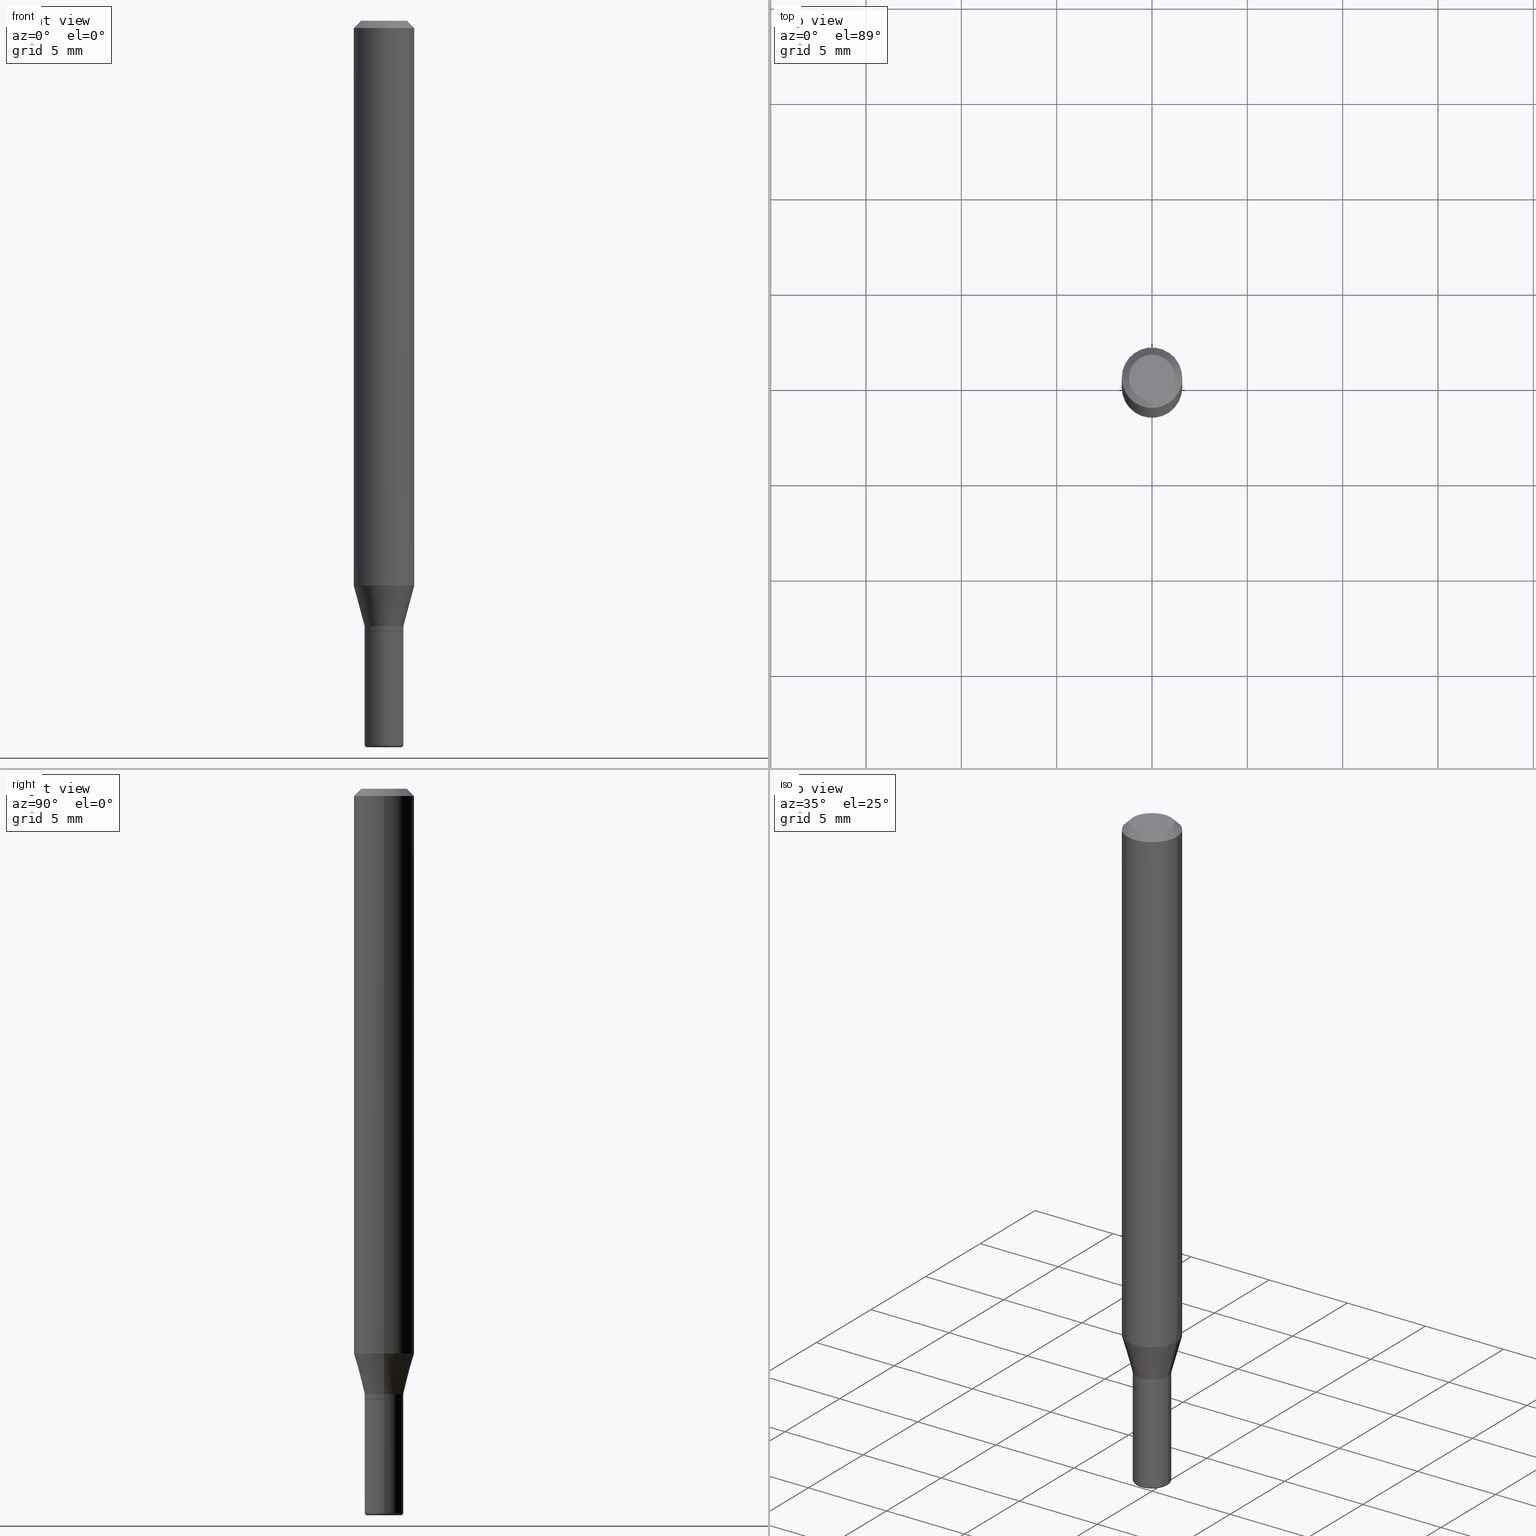
[diagram: canonical four-view strip — front | top / right | iso, engineering-drawing reading convention]
A machine part, canonical four-view strip (front | top / right | iso — engineering-drawing reading convention). The complete STEP part file that produces these views, byte-faithful:
ISO-10303-21;
HEADER;
FILE_DESCRIPTION (( 'STEP AP203' ),
    '1' );
FILE_NAME ('08701.STEP',
    '2024-02-29T20:27:56',
    ( '' ),
    ( '' ),
    'SwSTEP 2.0',
    'SolidWorks 2023',
    '' );
FILE_SCHEMA (( 'CONFIG_CONTROL_DESIGN' ));
ENDSEC;

DATA;
#1 = ADVANCED_FACE ( 'NONE', ( #173 ), #290, .T. ) ;
#2 = EDGE_LOOP ( 'NONE', ( #231, #312 ) ) ;
#3 = CARTESIAN_POINT ( 'NONE',  ( 3.080067961390179490E-29, -4.397520746272941828E-15, -1.259500000000000064 ) ) ;
#4 = AXIS2_PLACEMENT_3D ( 'NONE', #491, #408, #19 ) ;
#5 = APPROVAL_PERSON_ORGANIZATION ( #473, #186, #238 ) ;
#6 = EDGE_LOOP ( 'NONE', ( #75, #157, #207, #151 ) ) ;
#7 = CARTESIAN_POINT ( 'NONE',  ( -0.04000000000000000083, -4.525298449952393698E-15, -1.260000000000000231 ) ) ;
#8 = MANIFOLD_SOLID_BREP ( 'Body-Move/Copy2[1]', #131 ) ;
#9 = PERSON ( 'UNSPECIFIED', 'UNSPECIFIED', 'UNSPECIFIED', ('UNSPECIFIED'), ('UNSPECIFIED'), ('UNSPECIFIED') ) ;
#10 = DIRECTION ( 'NONE',  ( -6.982962677686266711E-15, -1.000000000000000000, 3.491481338843145583E-15 ) ) ;
#11 = PLANE ( 'NONE',  #4 ) ;
#12 = DIRECTION ( 'NONE',  ( -2.445468806185136597E-29, 3.491481338843145583E-15, 1.000000000000000000 ) ) ;
#13 = CIRCLE ( 'NONE', #91, 0.06250000000000000000 ) ;
#14 = CARTESIAN_POINT ( 'NONE',  ( 3.081290695793272291E-29, -4.399266486942364120E-15, -1.260000000000000231 ) ) ;
#15 = LOCAL_TIME ( 15, 27, 56.00000000000000000, #197 ) ;
#16 = FACE_OUTER_BOUND ( 'NONE', #2, .T. ) ;
#17 = CARTESIAN_POINT ( 'NONE',  ( -0.06250000000000000000, -3.627078784323440528E-15, -1.166028856829699700 ) ) ;
#18 = CC_DESIGN_PERSON_AND_ORGANIZATION_ASSIGNMENT ( #277, #426, ( #36 ) ) ;
#19 = DIRECTION ( 'NONE',  ( -1.000000000000000000, 6.982962677686265922E-15, -4.876176775795935793E-29 ) ) ;
#20 = DIRECTION ( 'NONE',  ( 0.7071067811864267805, -2.468850131080992517E-15, 0.7071067811866682540 ) ) ;
#21 = DIRECTION ( 'NONE',  ( -2.445468806185136597E-29, 3.491481338843145583E-15, 1.000000000000000000 ) ) ;
#22 = AXIS2_PLACEMENT_3D ( 'NONE', #3, #365, #203 ) ;
#23 = AXIS2_PLACEMENT_3D ( 'NONE', #292, #412, #179 ) ;
#24 = ORIENTED_EDGE ( 'NONE', *, *, #178, .T. ) ;
#25 = LENGTH_MEASURE_WITH_UNIT ( LENGTH_MEASURE( 0.02539999999999999897 ), #271 );
#26 = CARTESIAN_POINT ( 'NONE',  ( 3.081290695793272291E-29, -4.399266486942364120E-15, -1.260000000000000231 ) ) ;
#27 = EDGE_CURVE ( 'NONE', #198, #478, #166, .T. ) ;
#28 = APPROVAL_ROLE ( '' ) ;
#29 = EDGE_CURVE ( 'NONE', #125, #159, #421, .T. ) ;
#30 = CARTESIAN_POINT ( 'NONE',  ( 0.04750000000000000749, -4.035134999187568762E-16, 2.731847993664288856E-16 ) ) ;
#31 = ORIENTED_EDGE ( 'NONE', *, *, #165, .T. ) ;
#32 = EDGE_LOOP ( 'NONE', ( #24, #337, #246, #356 ) ) ;
#33 = APPROVAL_ROLE ( '' ) ;
#34 = DIRECTION ( 'NONE',  ( -2.445468806185136597E-29, 3.491481338843145583E-15, 1.000000000000000000 ) ) ;
#35 = AXIS2_PLACEMENT_3D ( 'NONE', #420, #68, #381 ) ;
#36 = SECURITY_CLASSIFICATION ( '', '', #115 ) ;
#37 = APPROVAL ( #236, 'UNSPECIFIED' ) ;
#38 = VERTEX_POINT ( 'NONE', #83 ) ;
#39 = APPROVAL_STATUS ( 'not_yet_approved' ) ;
#40 = DIRECTION ( 'NONE',  ( 0.2588190451025207395, 1.565188264969626109E-15, 0.9659258262890682012 ) ) ;
#41 = CIRCLE ( 'NONE', #389, 0.03999999999999995226 ) ;
#42 = AXIS2_PLACEMENT_3D ( 'NONE', #427, #237, #194 ) ;
#43 = AXIS2_PLACEMENT_3D ( 'NONE', #144, #300, #456 ) ;
#44 = CARTESIAN_POINT ( 'NONE',  ( 0.000000000000000000, 0.000000000000000000, 0.000000000000000000 ) ) ;
#45 = CARTESIAN_POINT ( 'NONE',  ( -0.06250000000000000000, 3.840629472727455270E-16, -0.01499999999999970281 ) ) ;
#46 = ORIENTED_EDGE ( 'NONE', *, *, #165, .F. ) ;
#47 = CARTESIAN_POINT ( 'NONE',  ( 0.04000000000000000083, -4.678584994049814947E-15, -1.260000000000000231 ) ) ;
#48 = TOROIDAL_SURFACE ( 'NONE', #204, 0.03500000000000000333, 0.004999999999999899490 ) ;
#49 = CC_DESIGN_SECURITY_CLASSIFICATION ( #36, ( #124 ) ) ;
#50 = DIRECTION ( 'NONE',  ( -2.445468806185136597E-29, 3.491481338843145583E-15, 1.000000000000000000 ) ) ;
#51 = EDGE_CURVE ( 'NONE', #503, #190, #279, .T. ) ;
#52 = DIRECTION ( 'NONE',  ( 1.000000000000000000, -6.982962677686266711E-15, 4.852736867747365086E-29 ) ) ;
#53 = ADVANCED_FACE ( 'NONE', ( #362 ), #48, .T. ) ;
#54 = DIRECTION ( 'NONE',  ( -2.445468806185136597E-29, 3.491481338843145583E-15, 1.000000000000000000 ) ) ;
#55 = DIRECTION ( 'NONE',  ( -2.438088387897960049E-29, 3.491481338843145188E-15, 1.000000000000000000 ) ) ;
#56 = AXIS2_PLACEMENT_3D ( 'NONE', #400, #446, #443 ) ;
#57 = VECTOR ( 'NONE', #192, 39.37007874015748143 ) ;
#58 = DIRECTION ( 'NONE',  ( 1.000000000000000000, -6.982962677686260400E-15, 0.000000000000000000 ) ) ;
#59 = MECHANICAL_CONTEXT ( 'NONE', #149, 'mechanical' ) ;
#60 = EDGE_CURVE ( 'NONE', #190, #501, #123, .T. ) ;
#61 = CARTESIAN_POINT ( 'NONE',  ( 0.03949999999999994488, -4.675093512710971151E-15, -1.260000000000000231 ) ) ;
#62 = ADVANCED_FACE ( 'NONE', ( #321 ), #195, .T. ) ;
#63 = ORIENTED_EDGE ( 'NONE', *, *, #119, .F. ) ;
#64 = FACE_OUTER_BOUND ( 'NONE', #167, .T. ) ;
#65 = DIRECTION ( 'NONE',  ( 1.000000000000000000, -6.982962677686267499E-15, 4.876176775795936353E-29 ) ) ;
#66 = ORIENTED_EDGE ( 'NONE', *, *, #163, .T. ) ;
#67 = DIRECTION ( 'NONE',  ( -1.000000000000000000, 6.982962677686266711E-15, 0.000000000000000000 ) ) ;
#68 = DIRECTION ( 'NONE',  ( -2.445468806185136597E-29, 3.491481338843145583E-15, 1.000000000000000000 ) ) ;
#69 = AXIS2_PLACEMENT_3D ( 'NONE', #294, #304, #135 ) ;
#70 = ORIENTED_EDGE ( 'NONE', *, *, #265, .F. ) ;
#71 = DATE_TIME_ROLE ( 'classification_date' ) ;
#72 = CARTESIAN_POINT ( 'NONE',  ( -0.03999999999999995226, 2.842170943040397351E-16, -1.967574036101960057E-30 ) ) ;
#73 = PRODUCT_RELATED_PRODUCT_CATEGORY ( 'detail', '', ( #363 ) ) ;
#74 = EDGE_LOOP ( 'NONE', ( #227, #287, #318, #512 ) ) ;
#75 = ORIENTED_EDGE ( 'NONE', *, *, #494, .T. ) ;
#76 = CALENDAR_DATE ( 2024, 29, 2 ) ;
#77 = DIRECTION ( 'NONE',  ( 1.000000000000000000, -6.982962677686260400E-15, 0.000000000000000000 ) ) ;
#78 = ORIENTED_EDGE ( 'NONE', *, *, #116, .T. ) ;
#79 = AXIS2_PLACEMENT_3D ( 'NONE', #26, #189, #502 ) ;
#80 = EDGE_LOOP ( 'NONE', ( #325, #385, #441, #120 ) ) ;
#81 = PERSON_AND_ORGANIZATION_ROLE ( 'creator' ) ;
#82 = ORIENTED_EDGE ( 'NONE', *, *, #461, .T. ) ;
#83 = CARTESIAN_POINT ( 'NONE',  ( 0.06250000000000000000, -4.507603161528894025E-15, -1.166028856829699700 ) ) ;
#84 = VERTEX_POINT ( 'NONE', #481 ) ;
#85 = DIRECTION ( 'NONE',  ( -2.445468806185136597E-29, 3.491481338843145583E-15, 1.000000000000000000 ) ) ;
#86 = ORIENTED_EDGE ( 'NONE', *, *, #136, .F. ) ;
#87 = CARTESIAN_POINT ( 'NONE',  ( 3.081290695793272291E-29, -4.399266486942364120E-15, -1.260000000000000231 ) ) ;
#88 = ORIENTED_EDGE ( 'NONE', *, *, #119, .T. ) ;
#89 = DIRECTION ( 'NONE',  ( -2.445468806185136877E-29, 3.491481338843145188E-15, 1.000000000000000000 ) ) ;
#90 = AXIS2_PLACEMENT_3D ( 'NONE', #374, #368, #52 ) ;
#91 = AXIS2_PLACEMENT_3D ( 'NONE', #181, #226, #331 ) ;
#92 = FACE_OUTER_BOUND ( 'NONE', #230, .T. ) ;
#93 = CARTESIAN_POINT ( 'NONE',  ( 0.000000000000000000, 0.000000000000000000, 0.000000000000000000 ) ) ;
#94 =( NAMED_UNIT ( * ) SI_UNIT ( $, .STERADIAN. ) SOLID_ANGLE_UNIT ( ) );
#95 = DIRECTION ( 'NONE',  ( 1.000000000000000000, -6.982962677686266711E-15, 0.000000000000000000 ) ) ;
#96 = DIRECTION ( 'NONE',  ( 0.000000000000000000, 0.000000000000000000, 1.000000000000000000 ) ) ;
#97 = ADVANCED_FACE ( 'NONE', ( #122 ), #284, .T. ) ;
#98 = AXIS2_PLACEMENT_3D ( 'NONE', #168, #326, #482 ) ;
#99 = UNCERTAINTY_MEASURE_WITH_UNIT (LENGTH_MEASURE( 1.000000000000000082E-05 ), #221, 'distance_accuracy_value', 'NONE');
#100 = CIRCLE ( 'NONE', #263, 0.06250000000000000000 ) ;
#101 = DIRECTION ( 'NONE',  ( 1.000000000000000000, -6.982962677686265922E-15, 4.876176775795935793E-29 ) ) ;
#102 = ORIENTED_EDGE ( 'NONE', *, *, #178, .F. ) ;
#103 = DIRECTION ( 'NONE',  ( 1.000000000000000000, -6.982962677686266711E-15, 4.876176775795935793E-29 ) ) ;
#104 = DIRECTION ( 'NONE',  ( 1.000000000000000000, -6.982962677686268288E-15, 0.000000000000000000 ) ) ;
#105 = ADVANCED_FACE ( 'NONE', ( #479 ), #403, .T. ) ;
#106 = CARTESIAN_POINT ( 'NONE',  ( 3.655975865246779683E-29, -5.219764601570503930E-15, -1.495000000000000329 ) ) ;
#107 = ORIENTED_EDGE ( 'NONE', *, *, #409, .F. ) ;
#108 = ORIENTED_EDGE ( 'NONE', *, *, #129, .F. ) ;
#109 = CARTESIAN_POINT ( 'NONE',  ( 3.668203209277632395E-31, -5.237222008264614861E-17, -0.01499999999999970281 ) ) ;
#110 = CARTESIAN_POINT ( 'NONE',  ( 0.000000000000000000, 0.000000000000000000, 0.000000000000000000 ) ) ;
#111 = VECTOR ( 'NONE', #339, 39.37007874015748143 ) ;
#112 = AXIS2_PLACEMENT_3D ( 'NONE', #145, #55, #369 ) ;
#113 = DIRECTION ( 'NONE',  ( 2.445468806185136597E-29, -3.491481338843145583E-15, -1.000000000000000000 ) ) ;
#114 = ORIENTED_EDGE ( 'NONE', *, *, #430, .F. ) ;
#115 = SECURITY_CLASSIFICATION_LEVEL ( 'unclassified' ) ;
#116 = EDGE_CURVE ( 'NONE', #297, #288, #395, .T. ) ;
#117 = APPROVAL_PERSON_ORGANIZATION ( #299, #37, #28 ) ;
#118 = COORDINATED_UNIVERSAL_TIME_OFFSET ( 5, 0, .BEHIND. ) ;
#119 = EDGE_CURVE ( 'NONE', #478, #508, #404, .T. ) ;
#120 = ORIENTED_EDGE ( 'NONE', *, *, #116, .F. ) ;
#121 = DIRECTION ( 'NONE',  ( -0.2588190451025207395, 5.211531920934546309E-15, 0.9659258262890682012 ) ) ;
#122 = FACE_OUTER_BOUND ( 'NONE', #431, .T. ) ;
#123 = CIRCLE ( 'NONE', #340, 0.03999999999999989675 ) ;
#124 = PRODUCT_DEFINITION_FORMATION_WITH_SPECIFIED_SOURCE ( 'ANY', '', #363, .NOT_KNOWN. ) ;
#125 = VERTEX_POINT ( 'NONE', #47 ) ;
#126 = DIRECTION ( 'NONE',  ( 1.000000000000000000, -6.982962677686266711E-15, 4.876176775795935793E-29 ) ) ;
#127 = CARTESIAN_POINT ( 'NONE',  ( 0.03999999999999993838, -2.793185071074502839E-16, 1.950470710318371585E-30 ) ) ;
#128 = CC_DESIGN_PERSON_AND_ORGANIZATION_ASSIGNMENT ( #471, #319, ( #124 ) ) ;
#129 = EDGE_CURVE ( 'NONE', #504, #38, #364, .T. ) ;
#130 = CARTESIAN_POINT ( 'NONE',  ( -0.03999999999999993838, 2.842170943040396365E-16, -1.967574036101959356E-30 ) ) ;
#131 = CLOSED_SHELL ( 'NONE', ( #105, #360, #260, #97, #53, #305 ) ) ;
#132 = CIRCLE ( 'NONE', #273, 0.03999999999999993144 ) ;
#133 = LOCAL_TIME ( 15, 27, 56.00000000000000000, #118 ) ;
#134 = CARTESIAN_POINT ( 'NONE',  ( -0.06250000000000000000, -1.617680897278011707E-15, -0.01499999999999970281 ) ) ;
#135 = DIRECTION ( 'NONE',  ( 1.000000000000000000, -6.982962677686266711E-15, 4.852736867747365086E-29 ) ) ;
#136 = EDGE_CURVE ( 'NONE', #198, #84, #514, .T. ) ;
#137 = DIRECTION ( 'NONE',  ( 1.000000000000000000, -6.982962677686256455E-15, 0.000000000000000000 ) ) ;
#138 = EDGE_CURVE ( 'NONE', #508, #38, #348, .T. ) ;
#139 = CARTESIAN_POINT ( 'NONE',  ( 0.000000000000000000, 0.000000000000000000, 0.000000000000000000 ) ) ;
#140 = FACE_OUTER_BOUND ( 'NONE', #345, .T. ) ;
#141 = ORIENTED_EDGE ( 'NONE', *, *, #138, .T. ) ;
#142 = APPLICATION_PROTOCOL_DEFINITION ( 'international standard', 'config_control_design', 1994, #428 ) ;
#143 = CLOSED_SHELL ( 'NONE', ( #352, #62, #442, #1, #213, #276, #506, #499, #513, #515, #373, #336 ) ) ;
#144 = CARTESIAN_POINT ( 'NONE',  ( 0.000000000000000000, 0.000000000000000000, 0.000000000000000000 ) ) ;
#145 = CARTESIAN_POINT ( 'NONE',  ( 3.081290695793272291E-29, -4.399266486942364120E-15, -1.260000000000000231 ) ) ;
#146 = CYLINDRICAL_SURFACE ( 'NONE', #43, 0.03999999999999993838 ) ;
#147 = ORIENTED_EDGE ( 'NONE', *, *, #211, .T. ) ;
#148 = CARTESIAN_POINT ( 'NONE',  ( 0.000000000000000000, 0.000000000000000000, 0.000000000000000000 ) ) ;
#149 = APPLICATION_CONTEXT ( 'configuration controlled 3d designs of mechanical parts and assemblies' ) ;
#150 = LINE ( 'NONE', #311, #57 ) ;
#151 = ORIENTED_EDGE ( 'NONE', *, *, #51, .F. ) ;
#152 = DIRECTION ( 'NONE',  ( -2.445468806185136597E-29, 3.491481338843145583E-15, 1.000000000000000000 ) ) ;
#153 = CIRCLE ( 'NONE', #35, 0.03500000000000000333 ) ;
#154 = EDGE_LOOP ( 'NONE', ( #224, #359 ) ) ;
#155 = DATE_AND_TIME ( #245, #349 ) ;
#156 = DIRECTION ( 'NONE',  ( -0.7071067811864267805, 7.493145998869918709E-15, 0.7071067811866682540 ) ) ;
#157 = ORIENTED_EDGE ( 'NONE', *, *, #322, .T. ) ;
#158 = PERSON_AND_ORGANIZATION_ROLE ( 'design_supplier' ) ;
#159 = VERTEX_POINT ( 'NONE', #7 ) ;
#160 = CIRCLE ( 'NONE', #250, 0.03999999999999989675 ) ;
#161 = APPROVAL_DATE_TIME ( #382, #457 ) ;
#162 = PRODUCT_DEFINITION ( 'UNKNOWN', '', #124, #451 ) ;
#163 = EDGE_CURVE ( 'NONE', #84, #504, #172, .T. ) ;
#164 = DIRECTION ( 'NONE',  ( 1.000000000000000000, -6.982962677686284854E-15, 0.000000000000000000 ) ) ;
#165 = EDGE_CURVE ( 'NONE', #38, #308, #216, .T. ) ;
#166 = LINE ( 'NONE', #130, #465 ) ;
#167 = EDGE_LOOP ( 'NONE', ( #270, #393 ) ) ;
#168 = CARTESIAN_POINT ( 'NONE',  ( 2.851487196488745443E-29, -4.071167994173502356E-15, -1.166028856829699700 ) ) ;
#169 = CC_DESIGN_PERSON_AND_ORGANIZATION_ASSIGNMENT ( #495, #380, ( #363 ) ) ;
#170 = AXIS2_PLACEMENT_3D ( 'NONE', #445, #10, #164 ) ;
#171 = CC_DESIGN_APPROVAL ( #457, ( #36 ) ) ;
#172 = LINE ( 'NONE', #127, #248 ) ;
#173 = FACE_OUTER_BOUND ( 'NONE', #458, .T. ) ;
#174 = ORIENTED_EDGE ( 'NONE', *, *, #411, .F. ) ;
#175 = DIRECTION ( 'NONE',  ( -2.445468806185136597E-29, 3.491481338843145583E-15, 1.000000000000000000 ) ) ;
#176 = VECTOR ( 'NONE', #156, 39.37007874015748143 ) ;
#177 = CARTESIAN_POINT ( 'NONE',  ( -0.03500000000000000333, -4.962039779007574825E-15, -1.499999999999999778 ) ) ;
#178 = EDGE_CURVE ( 'NONE', #84, #198, #41, .T. ) ;
#179 = DIRECTION ( 'NONE',  ( -1.000000000000000000, 7.105427357601074434E-15, 0.000000000000000000 ) ) ;
#180 = DIRECTION ( 'NONE',  ( -2.445468806185136597E-29, 3.491481338843145583E-15, 1.000000000000000000 ) ) ;
#181 = CARTESIAN_POINT ( 'NONE',  ( 3.668203209277632395E-31, -5.237222008264614861E-17, -0.01499999999999970281 ) ) ;
#182 = ORIENTED_EDGE ( 'NONE', *, *, #280, .T. ) ;
#183 = CARTESIAN_POINT ( 'NONE',  ( 3.668203209277704335E-29, -5.237222008264717388E-15, -1.499999999999999778 ) ) ;
#184 = VECTOR ( 'NONE', #121, 39.37007874015748854 ) ;
#185 = CARTESIAN_POINT ( 'NONE',  ( -0.03949999999999994488, -4.115952879143013491E-15, -1.260000000000000231 ) ) ;
#186 = APPROVAL ( #357, 'UNSPECIFIED' ) ;
#187 = ORIENTED_EDGE ( 'NONE', *, *, #449, .T. ) ;
#188 = CARTESIAN_POINT ( 'NONE',  ( 0.03500000000000000333, -5.481625701983737354E-15, -1.499999999999999778 ) ) ;
#189 = DIRECTION ( 'NONE',  ( -2.445468806185136597E-29, 3.491481338843145583E-15, 1.000000000000000000 ) ) ;
#190 = VERTEX_POINT ( 'NONE', #219 ) ;
#191 = CALENDAR_DATE ( 2024, 29, 2 ) ;
#192 = DIRECTION ( 'NONE',  ( 0.7071067811865479058, -7.319954787623257623E-15, -0.7071067811865471286 ) ) ;
#193 = DATE_TIME_ROLE ( 'creation_date' ) ;
#194 = DIRECTION ( 'NONE',  ( 1.000000000000000000, -6.982962677686259611E-15, 0.000000000000000000 ) ) ;
#195 = CONICAL_SURFACE ( 'NONE', #202, 0.03949999999999994488, 0.7853981633972775267 ) ;
#196 = AXIS2_PLACEMENT_3D ( 'NONE', #14, #175, #137 ) ;
#197 = COORDINATED_UNIVERSAL_TIME_OFFSET ( 5, 0, .BEHIND. ) ;
#198 = VERTEX_POINT ( 'NONE', #376 ) ;
#199 = COORDINATED_UNIVERSAL_TIME_OFFSET ( 5, 0, .BEHIND. ) ;
#200 = ORIENTED_EDGE ( 'NONE', *, *, #470, .F. ) ;
#201 = ORIENTED_EDGE ( 'NONE', *, *, #51, .T. ) ;
#202 = AXIS2_PLACEMENT_3D ( 'NONE', #518, #324, #282 ) ;
#203 = DIRECTION ( 'NONE',  ( 1.000000000000000000, -6.982962677686268288E-15, 0.000000000000000000 ) ) ;
#204 = AXIS2_PLACEMENT_3D ( 'NONE', #328, #50, #516 ) ;
#205 = CONICAL_SURFACE ( 'NONE', #405, 0.06250000000000000000, 0.7853981633974488341 ) ;
#206 = PRODUCT_DEFINITION_SHAPE ( 'NONE', 'NONE',  #162 ) ;
#207 = ORIENTED_EDGE ( 'NONE', *, *, #60, .F. ) ;
#208 = DIRECTION ( 'NONE',  ( -2.445468806185136877E-29, 3.491481338843145188E-15, 1.000000000000000000 ) ) ;
#209 = VERTEX_POINT ( 'NONE', #185 ) ;
#210 = CARTESIAN_POINT ( 'NONE',  ( -0.03999999999999993144, -4.080134579249892145E-15, -1.249999999999999778 ) ) ;
#211 = EDGE_CURVE ( 'NONE', #504, #478, #239, .T. ) ;
#212 = CARTESIAN_POINT ( 'NONE',  ( 0.03999999999999993144, -4.643670180661380931E-15, -1.249999999999999778 ) ) ;
#213 = ADVANCED_FACE ( 'NONE', ( #406 ), #262, .T. ) ;
#214 = LOCAL_TIME ( 15, 27, 56.00000000000000000, #199 ) ;
#215 = APPROVAL_PERSON_ORGANIZATION ( #388, #457, #33 ) ;
#216 = LINE ( 'NONE', #255, #475 ) ;
#217 = FACE_OUTER_BOUND ( 'NONE', #320, .T. ) ;
#218 = CARTESIAN_POINT ( 'NONE',  ( -0.03999999999999989675, -4.525298449952393698E-15, -1.495000000000000329 ) ) ;
#219 = CARTESIAN_POINT ( 'NONE',  ( 0.03999999999999989675, -5.499083108677954756E-15, -1.495000000000000329 ) ) ;
#220 =( GEOMETRIC_REPRESENTATION_CONTEXT ( 3 ) GLOBAL_UNCERTAINTY_ASSIGNED_CONTEXT ( ( #99 ) ) GLOBAL_UNIT_ASSIGNED_CONTEXT ( ( #221, #338, #94 ) ) REPRESENTATION_CONTEXT ( 'NONE', 'WORKASPACE' ) );
#221 =( CONVERSION_BASED_UNIT ( 'INCH', #25 ) LENGTH_UNIT ( ) NAMED_UNIT ( #476 ) );
#222 = DIRECTION ( 'NONE',  ( -2.445468806185136597E-29, 3.491481338843145583E-15, 1.000000000000000000 ) ) ;
#223 = PLANE ( 'NONE',  #358 ) ;
#224 = ORIENTED_EDGE ( 'NONE', *, *, #391, .F. ) ;
#225 = DIRECTION ( 'NONE',  ( 2.438088387897960049E-29, -3.491481338843145188E-15, -1.000000000000000000 ) ) ;
#226 = DIRECTION ( 'NONE',  ( -2.445468806185136597E-29, 3.491481338843145583E-15, 1.000000000000000000 ) ) ;
#227 = ORIENTED_EDGE ( 'NONE', *, *, #60, .T. ) ;
#228 = AXIS2_PLACEMENT_3D ( 'NONE', #109, #341, #67 ) ;
#229 = DIRECTION ( 'NONE',  ( 1.000000000000000000, -6.982962677686266711E-15, 4.876176775795935793E-29 ) ) ;
#230 = EDGE_LOOP ( 'NONE', ( #480, #307 ) ) ;
#231 = ORIENTED_EDGE ( 'NONE', *, *, #29, .T. ) ;
#232 = DATE_AND_TIME ( #394, #298 ) ;
#233 = CYLINDRICAL_SURFACE ( 'NONE', #413, 0.03999999999999995226 ) ;
#234 = ORIENTED_EDGE ( 'NONE', *, *, #269, .T. ) ;
#235 = VERTEX_POINT ( 'NONE', #177 ) ;
#236 = APPROVAL_STATUS ( 'not_yet_approved' ) ;
#237 = DIRECTION ( 'NONE',  ( -2.445468806185136597E-29, 3.491481338843145583E-15, 1.000000000000000000 ) ) ;
#238 = APPROVAL_ROLE ( '' ) ;
#239 = CIRCLE ( 'NONE', #396, 0.03999999999999993144 ) ;
#240 = CIRCLE ( 'NONE', #379, 0.03949999999999994488 ) ;
#241 = EDGE_LOOP ( 'NONE', ( #70, #141, #31, #347 ) ) ;
#242 = APPROVAL_DATE_TIME ( #354, #37 ) ;
#243 = EDGE_CURVE ( 'NONE', #308, #288, #332, .T. ) ;
#244 = ORIENTED_EDGE ( 'NONE', *, *, #322, .F. ) ;
#245 = CALENDAR_DATE ( 2024, 29, 2 ) ;
#246 = ORIENTED_EDGE ( 'NONE', *, *, #211, .F. ) ;
#247 = CARTESIAN_POINT ( 'NONE',  ( 3.655975865246779683E-29, -5.219764601570503930E-15, -1.495000000000000329 ) ) ;
#248 = VECTOR ( 'NONE', #89, 39.37007874015748143 ) ;
#249 = DIRECTION ( 'NONE',  ( 1.000000000000000000, -6.982962677686266711E-15, 4.876176775795935793E-29 ) ) ;
#250 = AXIS2_PLACEMENT_3D ( 'NONE', #106, #314, #306 ) ;
#251 = ORIENTED_EDGE ( 'NONE', *, *, #391, .T. ) ;
#252 = CARTESIAN_POINT ( 'NONE',  ( 0.000000000000000000, 0.000000000000000000, 0.000000000000000000 ) ) ;
#253 = EDGE_CURVE ( 'NONE', #297, #425, #317, .T. ) ;
#254 = VERTEX_POINT ( 'NONE', #61 ) ;
#255 = CARTESIAN_POINT ( 'NONE',  ( 0.06250000000000000000, -4.364351673553916694E-16, 3.047610484872459871E-30 ) ) ;
#256 = AXIS2_PLACEMENT_3D ( 'NONE', #295, #21, #95 ) ;
#257 = ORGANIZATION ( 'UNSPECIFIED', 'UNSPECIFIED', '' ) ;
#258 = DIRECTION ( 'NONE',  ( -2.445468806185136597E-29, 3.491481338843145583E-15, 1.000000000000000000 ) ) ;
#259 = CARTESIAN_POINT ( 'NONE',  ( 3.056836007731420185E-29, -4.364351673553931682E-15, -1.249999999999999778 ) ) ;
#260 = ADVANCED_FACE ( 'NONE', ( #16 ), #11, .F. ) ;
#261 = CARTESIAN_POINT ( 'NONE',  ( 3.582686580359765478E-29, -5.359686688179452536E-15, -1.499999999999999778 ) ) ;
#262 = CONICAL_SURFACE ( 'NONE', #454, 0.03999999999999993144, 0.2617993877991494633 ) ;
#263 = AXIS2_PLACEMENT_3D ( 'NONE', #507, #152, #344 ) ;
#264 = DIRECTION ( 'NONE',  ( 1.000000000000000000, 0.000000000000000000, 0.000000000000000000 ) ) ;
#265 = EDGE_CURVE ( 'NONE', #508, #288, #370, .T. ) ;
#266 = CARTESIAN_POINT ( 'NONE',  ( -0.04750000000000000749, 3.578768372314221353E-16, 2.731847993664239060E-16 ) ) ;
#267 = PLANE ( 'NONE',  #274 ) ;
#268 = FACE_OUTER_BOUND ( 'NONE', #32, .T. ) ;
#269 = EDGE_CURVE ( 'NONE', #209, #254, #296, .T. ) ;
#270 = ORIENTED_EDGE ( 'NONE', *, *, #253, .T. ) ;
#271 =( LENGTH_UNIT ( ) NAMED_UNIT ( * ) SI_UNIT ( $, .METRE. ) );
#272 = DIRECTION ( 'NONE',  ( -1.000000000000000000, 6.982962677686266711E-15, 0.000000000000000000 ) ) ;
#273 = AXIS2_PLACEMENT_3D ( 'NONE', #424, #383, #77 ) ;
#274 = AXIS2_PLACEMENT_3D ( 'NONE', #490, #225, #407 ) ;
#275 = DIRECTION ( 'NONE',  ( -2.445468806185136597E-29, 3.491481338843145583E-15, 1.000000000000000000 ) ) ;
#276 = ADVANCED_FACE ( 'NONE', ( #140 ), #371, .T. ) ;
#277 = PERSON_AND_ORGANIZATION ( #9, #257 ) ;
#278 = FACE_OUTER_BOUND ( 'NONE', #419, .T. ) ;
#279 = CIRCLE ( 'NONE', #170, 0.004999999999999895153 ) ;
#280 = EDGE_CURVE ( 'NONE', #288, #308, #13, .T. ) ;
#281 = CC_DESIGN_APPROVAL ( #37, ( #162 ) ) ;
#282 = DIRECTION ( 'NONE',  ( 1.000000000000000000, -6.982962677686256455E-15, 0.000000000000000000 ) ) ;
#283 = VECTOR ( 'NONE', #40, 39.37007874015748854 ) ;
#284 = CYLINDRICAL_SURFACE ( 'NONE', #509, 0.03999999999999995226 ) ;
#285 = CIRCLE ( 'NONE', #23, 0.004999999999999895153 ) ;
#286 = ORIENTED_EDGE ( 'NONE', *, *, #411, .T. ) ;
#287 = ORIENTED_EDGE ( 'NONE', *, *, #437, .T. ) ;
#288 = VERTEX_POINT ( 'NONE', #134 ) ;
#289 = DIRECTION ( 'NONE',  ( -2.445468806185136597E-29, 3.491481338843145583E-15, 1.000000000000000000 ) ) ;
#290 = CYLINDRICAL_SURFACE ( 'NONE', #439, 0.06250000000000000000 ) ;
#291 = CONICAL_SURFACE ( 'NONE', #79, 0.03949999999999994488, 0.7853981633972775267 ) ;
#292 = CARTESIAN_POINT ( 'NONE',  ( -0.03500000000000000333, -4.971074644054467855E-15, -1.495000000000000107 ) ) ;
#293 = CARTESIAN_POINT ( 'NONE',  ( 3.056836007731420185E-29, -4.364351673553931682E-15, -1.249999999999999778 ) ) ;
#294 = CARTESIAN_POINT ( 'NONE',  ( -6.680649051745406845E-45, 9.538196290434862081E-31, 2.731847993664263218E-16 ) ) ;
#295 = CARTESIAN_POINT ( 'NONE',  ( 3.668203209277632395E-31, -5.237222008264614861E-17, -0.01499999999999970281 ) ) ;
#296 = CIRCLE ( 'NONE', #196, 0.03949999999999994488 ) ;
#297 = VERTEX_POINT ( 'NONE', #266 ) ;
#298 = LOCAL_TIME ( 15, 27, 56.00000000000000000, #313 ) ;
#299 = PERSON_AND_ORGANIZATION ( #9, #257 ) ;
#300 = DIRECTION ( 'NONE',  ( -2.445468806185136597E-29, 3.491481338843145583E-15, 1.000000000000000000 ) ) ;
#301 = ORIENTED_EDGE ( 'NONE', *, *, #449, .F. ) ;
#302 = CARTESIAN_POINT ( 'NONE',  ( 0.03999999999999993144, -4.643670180661380931E-15, -1.249999999999999778 ) ) ;
#303 = FACE_OUTER_BOUND ( 'NONE', #74, .T. ) ;
#304 = DIRECTION ( 'NONE',  ( -2.445468806185136597E-29, 3.491481338843145583E-15, 1.000000000000000000 ) ) ;
#305 = ADVANCED_FACE ( 'NONE', ( #92 ), #223, .F. ) ;
#306 = DIRECTION ( 'NONE',  ( 1.000000000000000000, -6.982962677686277755E-15, 0.000000000000000000 ) ) ;
#307 = ORIENTED_EDGE ( 'NONE', *, *, #461, .F. ) ;
#308 = VERTEX_POINT ( 'NONE', #488 ) ;
#309 = PERSON_AND_ORGANIZATION ( #9, #257 ) ;
#310 = VECTOR ( 'NONE', #496, 39.37007874015748143 ) ;
#311 = CARTESIAN_POINT ( 'NONE',  ( 0.06250000000000000000, -4.811533449433669144E-16, -0.01499999999999970281 ) ) ;
#312 = ORIENTED_EDGE ( 'NONE', *, *, #444, .T. ) ;
#313 = COORDINATED_UNIVERSAL_TIME_OFFSET ( 5, 0, .BEHIND. ) ;
#314 = DIRECTION ( 'NONE',  ( -2.445468806185136597E-29, 3.491481338843145583E-15, 1.000000000000000000 ) ) ;
#315 = CC_DESIGN_DATE_AND_TIME_ASSIGNMENT ( #423, #71, ( #36 ) ) ;
#316 = ORIENTED_EDGE ( 'NONE', *, *, #437, .F. ) ;
#317 = CIRCLE ( 'NONE', #90, 0.04750000000000000749 ) ;
#318 = ORIENTED_EDGE ( 'NONE', *, *, #29, .F. ) ;
#319 = PERSON_AND_ORGANIZATION_ROLE ( 'creator' ) ;
#320 = EDGE_LOOP ( 'NONE', ( #330, #361, #66, #174 ) ) ;
#321 = FACE_OUTER_BOUND ( 'NONE', #493, .T. ) ;
#322 = EDGE_CURVE ( 'NONE', #235, #501, #285, .T. ) ;
#323 = EDGE_LOOP ( 'NONE', ( #244, #82, #201, #107 ) ) ;
#324 = DIRECTION ( 'NONE',  ( -2.445468806185136597E-29, 3.491481338843145583E-15, 1.000000000000000000 ) ) ;
#325 = ORIENTED_EDGE ( 'NONE', *, *, #483, .F. ) ;
#326 = DIRECTION ( 'NONE',  ( -2.445468806185136597E-29, 3.491481338843145583E-15, 1.000000000000000000 ) ) ;
#327 = VECTOR ( 'NONE', #20, 39.37007874015748143 ) ;
#328 = CARTESIAN_POINT ( 'NONE',  ( 3.655975865246779122E-29, -5.219764601570503141E-15, -1.495000000000000107 ) ) ;
#329 = CC_DESIGN_PERSON_AND_ORGANIZATION_ASSIGNMENT ( #309, #158, ( #124 ) ) ;
#330 = ORIENTED_EDGE ( 'NONE', *, *, #27, .F. ) ;
#331 = DIRECTION ( 'NONE',  ( 1.000000000000000000, -6.982962677686266711E-15, 0.000000000000000000 ) ) ;
#332 = CIRCLE ( 'NONE', #256, 0.06250000000000000000 ) ;
#333 = CARTESIAN_POINT ( 'NONE',  ( 3.080067961390179490E-29, -4.397520746272941828E-15, -1.259500000000000064 ) ) ;
#334 = CARTESIAN_POINT ( 'NONE',  ( 3.056836007731420185E-29, -4.364351673553931682E-15, -1.249999999999999778 ) ) ;
#335 = EDGE_CURVE ( 'NONE', #190, #125, #492, .T. ) ;
#336 = ADVANCED_FACE ( 'NONE', ( #217 ), #146, .T. ) ;
#337 = ORIENTED_EDGE ( 'NONE', *, *, #27, .T. ) ;
#338 =( NAMED_UNIT ( * ) PLANE_ANGLE_UNIT ( ) SI_UNIT ( $, .RADIAN. ) );
#339 = DIRECTION ( 'NONE',  ( -2.445468806185136877E-29, 3.491481338843145188E-15, 1.000000000000000000 ) ) ;
#340 = AXIS2_PLACEMENT_3D ( 'NONE', #247, #289, #485 ) ;
#341 = DIRECTION ( 'NONE',  ( 2.445468806185136597E-29, -3.491481338843145583E-15, -1.000000000000000000 ) ) ;
#342 = CARTESIAN_POINT ( 'NONE',  ( -0.06250000000000000000, 4.440892098500626162E-16, -3.074334431409316114E-30 ) ) ;
#343 = ORIENTED_EDGE ( 'NONE', *, *, #335, .T. ) ;
#344 = DIRECTION ( 'NONE',  ( 1.000000000000000000, -6.982962677686262766E-15, 0.000000000000000000 ) ) ;
#345 = EDGE_LOOP ( 'NONE', ( #63, #286, #355, #399 ) ) ;
#346 = DIRECTION ( 'NONE',  ( -2.445468806185136877E-29, 3.491481338843145188E-15, 1.000000000000000000 ) ) ;
#347 = ORIENTED_EDGE ( 'NONE', *, *, #280, .F. ) ;
#348 = CIRCLE ( 'NONE', #98, 0.06250000000000000000 ) ;
#349 = LOCAL_TIME ( 15, 27, 56.00000000000000000, #429 ) ;
#350 = LINE ( 'NONE', #511, #176 ) ;
#351 = MANIFOLD_SOLID_BREP ( 'Body-Move/Copy2[2]', #143 ) ;
#352 = ADVANCED_FACE ( 'NONE', ( #268 ), #448, .T. ) ;
#353 = CC_DESIGN_DATE_AND_TIME_ASSIGNMENT ( #155, #193, ( #162 ) ) ;
#354 = DATE_AND_TIME ( #386, #214 ) ;
#355 = ORIENTED_EDGE ( 'NONE', *, *, #129, .T. ) ;
#356 = ORIENTED_EDGE ( 'NONE', *, *, #163, .F. ) ;
#357 = APPROVAL_STATUS ( 'not_yet_approved' ) ;
#358 = AXIS2_PLACEMENT_3D ( 'NONE', #261, #500, #101 ) ;
#359 = ORIENTED_EDGE ( 'NONE', *, *, #269, .F. ) ;
#360 = ADVANCED_FACE ( 'NONE', ( #303 ), #233, .T. ) ;
#361 = ORIENTED_EDGE ( 'NONE', *, *, #136, .T. ) ;
#362 = FACE_OUTER_BOUND ( 'NONE', #323, .T. ) ;
#363 = PRODUCT ( '08701', '08701', '', ( #59 ) ) ;
#364 = LINE ( 'NONE', #212, #283 ) ;
#365 = DIRECTION ( 'NONE',  ( -2.445468806185136597E-29, 3.491481338843145583E-15, 1.000000000000000000 ) ) ;
#366 = AXIS2_PLACEMENT_3D ( 'NONE', #293, #453, #452 ) ;
#367 = DIRECTION ( 'NONE',  ( -2.445468806185136877E-29, 3.491481338843145188E-15, 1.000000000000000000 ) ) ;
#368 = DIRECTION ( 'NONE',  ( -2.445468806185136597E-29, 3.491481338843145583E-15, 1.000000000000000000 ) ) ;
#369 = DIRECTION ( 'NONE',  ( 1.000000000000000000, -6.982962677686265922E-15, 4.876176775795935793E-29 ) ) ;
#370 = LINE ( 'NONE', #342, #111 ) ;
#371 = CONICAL_SURFACE ( 'NONE', #366, 0.03999999999999993144, 0.2617993877991494633 ) ;
#372 = FACE_OUTER_BOUND ( 'NONE', #154, .T. ) ;
#373 = ADVANCED_FACE ( 'NONE', ( #278 ), #291, .T. ) ;
#374 = CARTESIAN_POINT ( 'NONE',  ( -6.680649051745406845E-45, 9.538196290434862081E-31, 2.731847993664263218E-16 ) ) ;
#375 = ORIENTED_EDGE ( 'NONE', *, *, #430, .T. ) ;
#376 = CARTESIAN_POINT ( 'NONE',  ( -0.03999999999999995226, -4.113303651968902290E-15, -1.259500000000000064 ) ) ;
#377 = PLANE ( 'NONE',  #112 ) ;
#378 = DIRECTION ( 'NONE',  ( 1.000000000000000000, -6.982962677686260400E-15, 0.000000000000000000 ) ) ;
#379 = AXIS2_PLACEMENT_3D ( 'NONE', #472, #275, #460 ) ;
#380 = PERSON_AND_ORGANIZATION_ROLE ( 'design_owner' ) ;
#381 = DIRECTION ( 'NONE',  ( 1.000000000000000000, -6.982962677686276966E-15, 0.000000000000000000 ) ) ;
#382 = DATE_AND_TIME ( #191, #133 ) ;
#383 = DIRECTION ( 'NONE',  ( -2.445468806185136597E-29, 3.491481338843145583E-15, 1.000000000000000000 ) ) ;
#384 = ORIENTED_EDGE ( 'NONE', *, *, #243, .F. ) ;
#385 = ORIENTED_EDGE ( 'NONE', *, *, #434, .T. ) ;
#386 = CALENDAR_DATE ( 2024, 29, 2 ) ;
#387 = FACE_OUTER_BOUND ( 'NONE', #80, .T. ) ;
#388 = PERSON_AND_ORGANIZATION ( #9, #257 ) ;
#389 = AXIS2_PLACEMENT_3D ( 'NONE', #333, #222, #104 ) ;
#390 = CIRCLE ( 'NONE', #497, 0.03500000000000000333 ) ;
#391 = EDGE_CURVE ( 'NONE', #254, #209, #240, .T. ) ;
#392 = ORIENTED_EDGE ( 'NONE', *, *, #409, .T. ) ;
#393 = ORIENTED_EDGE ( 'NONE', *, *, #483, .T. ) ;
#394 = CALENDAR_DATE ( 2024, 29, 2 ) ;
#395 = LINE ( 'NONE', #45, #486 ) ;
#396 = AXIS2_PLACEMENT_3D ( 'NONE', #259, #258, #58 ) ;
#397 = AXIS2_PLACEMENT_3D ( 'NONE', #139, #96, #264 ) ;
#398 = DIRECTION ( 'NONE',  ( 1.000000000000000000, -6.982962677686259611E-15, 0.000000000000000000 ) ) ;
#399 = ORIENTED_EDGE ( 'NONE', *, *, #138, .F. ) ;
#400 = CARTESIAN_POINT ( 'NONE',  ( 3.655975865246779122E-29, -5.219764601570503141E-15, -1.495000000000000107 ) ) ;
#401 = DIRECTION ( 'NONE',  ( -2.445468806185136597E-29, 3.491481338843145583E-15, 1.000000000000000000 ) ) ;
#402 = CC_DESIGN_PERSON_AND_ORGANIZATION_ASSIGNMENT ( #433, #81, ( #162 ) ) ;
#403 = TOROIDAL_SURFACE ( 'NONE', #56, 0.03500000000000000333, 0.004999999999999899490 ) ;
#404 = LINE ( 'NONE', #210, #184 ) ;
#405 = AXIS2_PLACEMENT_3D ( 'NONE', #468, #113, #272 ) ;
#406 = FACE_OUTER_BOUND ( 'NONE', #416, .T. ) ;
#407 = DIRECTION ( 'NONE',  ( -1.000000000000000000, 6.982962677686265922E-15, -4.876176775795935793E-29 ) ) ;
#408 = DIRECTION ( 'NONE',  ( 2.438088387897960049E-29, -3.491481338843145188E-15, -1.000000000000000000 ) ) ;
#409 = EDGE_CURVE ( 'NONE', #501, #190, #160, .T. ) ;
#410 = DIRECTION ( 'NONE',  ( 1.000000000000000000, -6.982962677686276966E-15, 0.000000000000000000 ) ) ;
#411 = EDGE_CURVE ( 'NONE', #478, #504, #132, .T. ) ;
#412 = DIRECTION ( 'NONE',  ( 7.105427357601001859E-15, 1.000000000000000000, -3.491481338843145583E-15 ) ) ;
#413 = AXIS2_PLACEMENT_3D ( 'NONE', #110, #34, #229 ) ;
#414 = APPLICATION_PROTOCOL_DEFINITION ( 'international standard', 'config_control_design', 1994, #149 ) ;
#415 = CARTESIAN_POINT ( 'NONE',  ( 0.03999999999999995226, -2.793185071074503332E-16, 1.950470710318371935E-30 ) ) ;
#416 = EDGE_LOOP ( 'NONE', ( #147, #88, #114, #108 ) ) ;
#417 = CYLINDRICAL_SURFACE ( 'NONE', #477, 0.06250000000000000000 ) ;
#418 = DIRECTION ( 'NONE',  ( -2.445468806185136597E-29, 3.491481338843145583E-15, 1.000000000000000000 ) ) ;
#419 = EDGE_LOOP ( 'NONE', ( #301, #234, #462, #86 ) ) ;
#420 = CARTESIAN_POINT ( 'NONE',  ( 3.668203209277704335E-29, -5.237222008264717388E-15, -1.499999999999999778 ) ) ;
#421 = CIRCLE ( 'NONE', #487, 0.04000000000000000083 ) ;
#422 = AXIS2_PLACEMENT_3D ( 'NONE', #93, #418, #65 ) ;
#423 = DATE_AND_TIME ( #76, #15 ) ;
#424 = CARTESIAN_POINT ( 'NONE',  ( 3.056836007731420185E-29, -4.364351673553931682E-15, -1.249999999999999778 ) ) ;
#425 = VERTEX_POINT ( 'NONE', #30 ) ;
#426 = PERSON_AND_ORGANIZATION_ROLE ( 'classification_officer' ) ;
#427 = CARTESIAN_POINT ( 'NONE',  ( 3.081290695793272291E-29, -4.399266486942364120E-15, -1.260000000000000231 ) ) ;
#428 = APPLICATION_CONTEXT ( 'configuration controlled 3d designs of mechanical parts and assemblies' ) ;
#429 = COORDINATED_UNIVERSAL_TIME_OFFSET ( 5, 0, .BEHIND. ) ;
#430 = EDGE_CURVE ( 'NONE', #38, #508, #100, .T. ) ;
#431 = EDGE_LOOP ( 'NONE', ( #316, #392, #343, #435 ) ) ;
#432 = SHAPE_DEFINITION_REPRESENTATION ( #206, #517 ) ;
#433 = PERSON_AND_ORGANIZATION ( #9, #257 ) ;
#434 = EDGE_CURVE ( 'NONE', #425, #308, #150, .T. ) ;
#435 = ORIENTED_EDGE ( 'NONE', *, *, #444, .F. ) ;
#436 = ORIENTED_EDGE ( 'NONE', *, *, #253, .F. ) ;
#437 = EDGE_CURVE ( 'NONE', #501, #159, #464, .T. ) ;
#438 = DIRECTION ( 'NONE',  ( -0.7071067811865479058, 2.468850131082261005E-15, -0.7071067811865471286 ) ) ;
#439 = AXIS2_PLACEMENT_3D ( 'NONE', #44, #484, #126 ) ;
#440 = CIRCLE ( 'NONE', #69, 0.04750000000000000749 ) ;
#441 = ORIENTED_EDGE ( 'NONE', *, *, #243, .T. ) ;
#442 = ADVANCED_FACE ( 'NONE', ( #387 ), #205, .T. ) ;
#443 = DIRECTION ( 'NONE',  ( 1.000000000000000000, -6.982962677686277755E-15, 4.883557194083116825E-29 ) ) ;
#444 = EDGE_CURVE ( 'NONE', #159, #125, #466, .T. ) ;
#445 = CARTESIAN_POINT ( 'NONE',  ( 0.03500000000000000333, -5.464168295289523107E-15, -1.495000000000000107 ) ) ;
#446 = DIRECTION ( 'NONE',  ( -2.445468806185136597E-29, 3.491481338843145583E-15, 1.000000000000000000 ) ) ;
#447 = VECTOR ( 'NONE', #346, 39.37007874015748143 ) ;
#448 = CYLINDRICAL_SURFACE ( 'NONE', #422, 0.03999999999999993838 ) ;
#449 = EDGE_CURVE ( 'NONE', #209, #198, #350, .T. ) ;
#450 = LINE ( 'NONE', #498, #327 ) ;
#451 = DESIGN_CONTEXT ( 'detailed design', #428, 'design' ) ;
#452 = DIRECTION ( 'NONE',  ( 1.000000000000000000, -6.982962677686260400E-15, 0.000000000000000000 ) ) ;
#453 = DIRECTION ( 'NONE',  ( -2.445468806185136597E-29, 3.491481338843145583E-15, 1.000000000000000000 ) ) ;
#454 = AXIS2_PLACEMENT_3D ( 'NONE', #334, #54, #378 ) ;
#455 = FACE_OUTER_BOUND ( 'NONE', #241, .T. ) ;
#456 = DIRECTION ( 'NONE',  ( 1.000000000000000000, -6.982962677686267499E-15, 4.876176775795936353E-29 ) ) ;
#457 = APPROVAL ( #39, 'UNSPECIFIED' ) ;
#458 = EDGE_LOOP ( 'NONE', ( #375, #469, #384, #46 ) ) ;
#459 = CARTESIAN_POINT ( 'NONE',  ( -0.03999999999999993144, -3.853606681786666336E-15, -1.249999999999999778 ) ) ;
#460 = DIRECTION ( 'NONE',  ( 1.000000000000000000, -6.982962677686256455E-15, 0.000000000000000000 ) ) ;
#461 = EDGE_CURVE ( 'NONE', #235, #503, #153, .T. ) ;
#462 = ORIENTED_EDGE ( 'NONE', *, *, #470, .T. ) ;
#463 = FACE_OUTER_BOUND ( 'NONE', #474, .T. ) ;
#464 = LINE ( 'NONE', #72, #447 ) ;
#465 = VECTOR ( 'NONE', #208, 39.37007874015748143 ) ;
#466 = CIRCLE ( 'NONE', #42, 0.04000000000000000083 ) ;
#467 = ORIENTED_EDGE ( 'NONE', *, *, #434, .F. ) ;
#468 = CARTESIAN_POINT ( 'NONE',  ( 3.668203209277632395E-31, -5.237222008264614861E-17, -0.01499999999999970281 ) ) ;
#469 = ORIENTED_EDGE ( 'NONE', *, *, #265, .T. ) ;
#470 = EDGE_CURVE ( 'NONE', #254, #84, #450, .T. ) ;
#471 = PERSON_AND_ORGANIZATION ( #9, #257 ) ;
#472 = CARTESIAN_POINT ( 'NONE',  ( 3.081290695793272291E-29, -4.399266486942364120E-15, -1.260000000000000231 ) ) ;
#473 = PERSON_AND_ORGANIZATION ( #9, #257 ) ;
#474 = EDGE_LOOP ( 'NONE', ( #467, #436, #78, #182 ) ) ;
#475 = VECTOR ( 'NONE', #367, 39.37007874015748143 ) ;
#476 = DIMENSIONAL_EXPONENTS ( 1.000000000000000000, 0.000000000000000000, 0.000000000000000000, 0.000000000000000000, 0.000000000000000000, 0.000000000000000000, 0.000000000000000000 ) ;
#477 = AXIS2_PLACEMENT_3D ( 'NONE', #148, #12, #103 ) ;
#478 = VERTEX_POINT ( 'NONE', #459 ) ;
#479 = FACE_OUTER_BOUND ( 'NONE', #6, .T. ) ;
#480 = ORIENTED_EDGE ( 'NONE', *, *, #494, .F. ) ;
#481 = CARTESIAN_POINT ( 'NONE',  ( 0.03999999999999995226, -4.676839253380392654E-15, -1.259500000000000064 ) ) ;
#482 = DIRECTION ( 'NONE',  ( 1.000000000000000000, -6.982962677686262766E-15, 0.000000000000000000 ) ) ;
#483 = EDGE_CURVE ( 'NONE', #425, #297, #440, .T. ) ;
#484 = DIRECTION ( 'NONE',  ( -2.445468806185136597E-29, 3.491481338843145583E-15, 1.000000000000000000 ) ) ;
#485 = DIRECTION ( 'NONE',  ( 1.000000000000000000, -6.982962677686277755E-15, 0.000000000000000000 ) ) ;
#486 = VECTOR ( 'NONE', #438, 39.37007874015748143 ) ;
#487 = AXIS2_PLACEMENT_3D ( 'NONE', #87, #401, #398 ) ;
#488 = CARTESIAN_POINT ( 'NONE',  ( 0.06250000000000000000, -4.888073874380378612E-16, -0.01499999999999970281 ) ) ;
#489 = CONICAL_SURFACE ( 'NONE', #228, 0.06250000000000000000, 0.7853981633974488341 ) ;
#490 = CARTESIAN_POINT ( 'NONE',  ( 3.316907271900976589E-16, 0.04750000000000000749, -2.925296391183627249E-17 ) ) ;
#491 = CARTESIAN_POINT ( 'NONE',  ( 2.793185071074814439E-16, 0.03999999999999560157, -1.260000000000000453 ) ) ;
#492 = LINE ( 'NONE', #415, #310 ) ;
#493 = EDGE_LOOP ( 'NONE', ( #251, #187, #102, #200 ) ) ;
#494 = EDGE_CURVE ( 'NONE', #503, #235, #390, .T. ) ;
#495 = PERSON_AND_ORGANIZATION ( #9, #257 ) ;
#496 = DIRECTION ( 'NONE',  ( -2.445468806185136877E-29, 3.491481338843145188E-15, 1.000000000000000000 ) ) ;
#497 = AXIS2_PLACEMENT_3D ( 'NONE', #183, #180, #410 ) ;
#498 = CARTESIAN_POINT ( 'NONE',  ( 0.03949999999999994488, -4.675093512710971151E-15, -1.260000000000000231 ) ) ;
#499 = ADVANCED_FACE ( 'NONE', ( #463 ), #489, .T. ) ;
#500 = DIRECTION ( 'NONE',  ( -2.438088387897960049E-29, 3.491481338843145188E-15, 1.000000000000000000 ) ) ;
#501 = VERTEX_POINT ( 'NONE', #218 ) ;
#502 = DIRECTION ( 'NONE',  ( 1.000000000000000000, -6.982962677686256455E-15, 0.000000000000000000 ) ) ;
#503 = VERTEX_POINT ( 'NONE', #188 ) ;
#504 = VERTEX_POINT ( 'NONE', #302 ) ;
#505 = APPROVAL_DATE_TIME ( #232, #186 ) ;
#506 = ADVANCED_FACE ( 'NONE', ( #455 ), #417, .T. ) ;
#507 = CARTESIAN_POINT ( 'NONE',  ( 2.851487196488745443E-29, -4.071167994173502356E-15, -1.166028856829699700 ) ) ;
#508 = VERTEX_POINT ( 'NONE', #17 ) ;
#509 = AXIS2_PLACEMENT_3D ( 'NONE', #252, #85, #249 ) ;
#510 = CC_DESIGN_APPROVAL ( #186, ( #124 ) ) ;
#511 = CARTESIAN_POINT ( 'NONE',  ( -0.03949999999999994488, -4.118602106317125481E-15, -1.260000000000000231 ) ) ;
#512 = ORIENTED_EDGE ( 'NONE', *, *, #335, .F. ) ;
#513 = ADVANCED_FACE ( 'NONE', ( #64 ), #267, .F. ) ;
#514 = CIRCLE ( 'NONE', #22, 0.03999999999999995226 ) ;
#515 = ADVANCED_FACE ( 'NONE', ( #372 ), #377, .F. ) ;
#516 = DIRECTION ( 'NONE',  ( 1.000000000000000000, -6.982962677686277755E-15, 4.883557194083116825E-29 ) ) ;
#517 = ADVANCED_BREP_SHAPE_REPRESENTATION ( '08701', ( #8, #351, #397 ), #220 ) ;
#518 = CARTESIAN_POINT ( 'NONE',  ( 3.081290695793272291E-29, -4.399266486942364120E-15, -1.260000000000000231 ) ) ;
ENDSEC;
END-ISO-10303-21;
